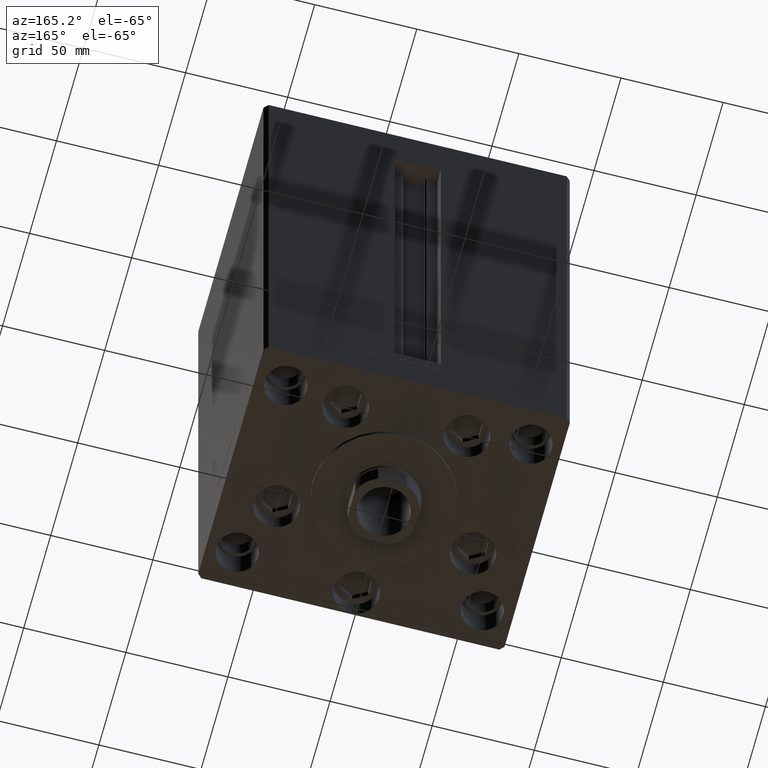
[diagram: clean part render]
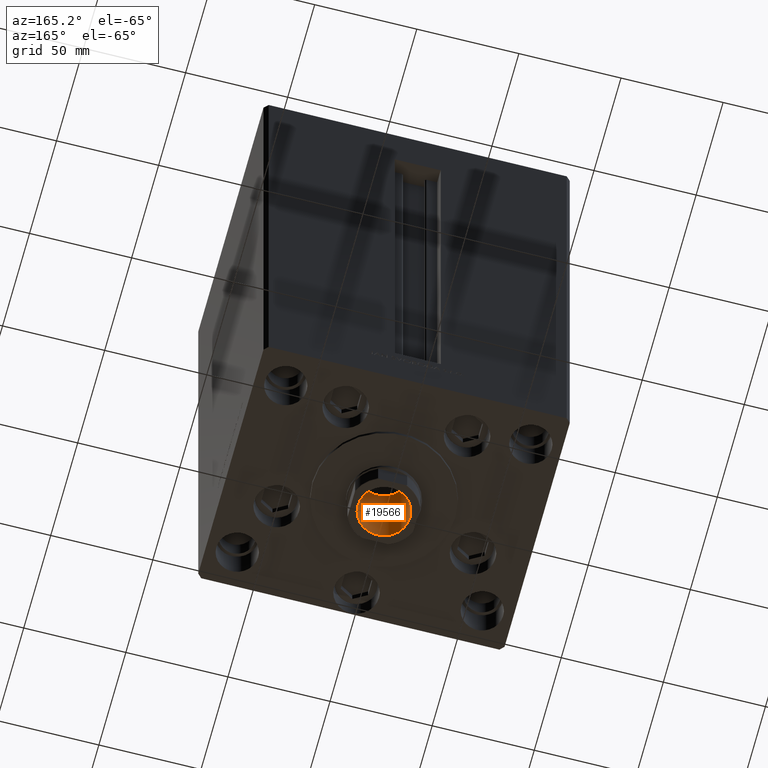
[diagram: same view with one face highlighted and labeled with its STEP entity id]
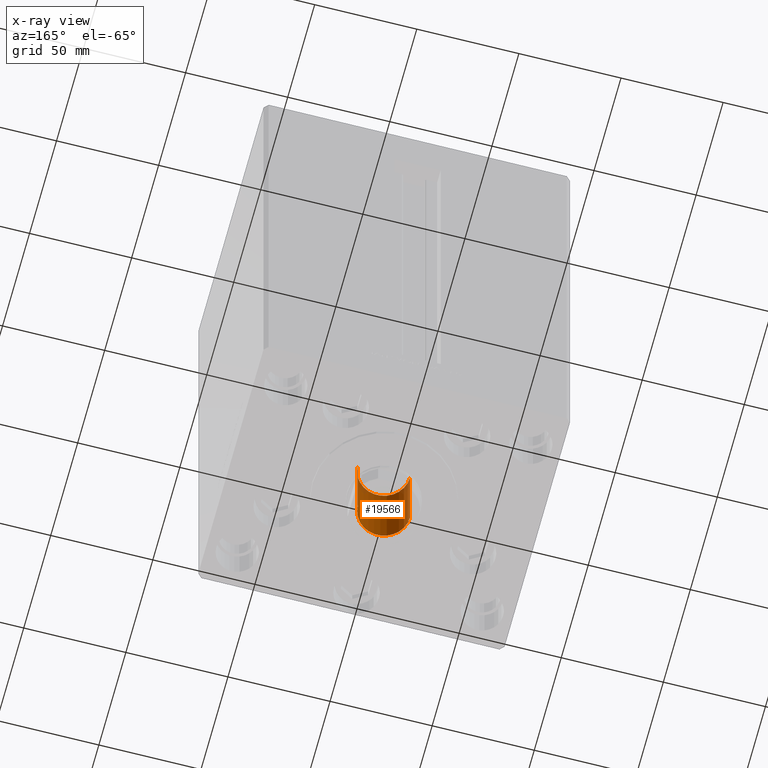
[diagram: x-ray of the same camera — body ghosted, the highlighted face saturated]
A machine part, auxiliary view. The second image highlights one B-rep face of the part: STEP entity #19566.
The next image is the same camera in x-ray: the body ghosted, the highlighted face saturated — about 5% of this face is hidden behind the body in this view.
In plain terms, the highlighted cylindrical surface (edge-blend (fillet) strip) has radius 12.75 mm, axis along (0, 0, -1).
Its self-contained STEP definition (entity closure, byte-faithful):
#3574 = VERTEX_POINT ( 'NONE', #42655 ) ;
#4647 = VERTEX_POINT ( 'NONE', #27961 ) ;
#6316 = CARTESIAN_POINT ( 'NONE',  ( -12.74999999999999467, 1.561424668912874519E-15, 252.1999999999999886 ) ) ;
#6577 = FACE_OUTER_BOUND ( 'NONE', #22371, .T. ) ;
#10393 = DIRECTION ( 'NONE',  ( 1.000000000000000000, 0.000000000000000000, 0.000000000000000000 ) ) ;
#11283 = EDGE_CURVE ( 'NONE', #3574, #46189, #15410, .T. ) ;
#14111 = DIRECTION ( 'NONE',  ( 0.000000000000000000, 0.000000000000000000, 1.000000000000000000 ) ) ;
#14749 = DIRECTION ( 'NONE',  ( 1.000000000000000000, 0.000000000000000000, 0.000000000000000000 ) ) ;
#15410 = LINE ( 'NONE', #37459, #48717 ) ;
#16922 = AXIS2_PLACEMENT_3D ( 'NONE', #40759, #33827, #14749 ) ;
#19022 = EDGE_CURVE ( 'NONE', #4647, #3574, #38225, .T. ) ;
#19548 = ORIENTED_EDGE ( 'NONE', *, *, #11283, .F. ) ;
#19566 = ADVANCED_FACE ( 'NONE', ( #6577 ), #44459, .F. ) ;
#20167 = CIRCLE ( 'NONE', #36679, 12.74999999999999467 ) ;
#22371 = EDGE_LOOP ( 'NONE', ( #48116, #35012, #31257, #19548 ) ) ;
#22380 = AXIS2_PLACEMENT_3D ( 'NONE', #29498, #33944, #48523 ) ;
#22597 = VECTOR ( 'NONE', #26942, 1000.000000000000000 ) ;
#22724 = CARTESIAN_POINT ( 'NONE',  ( -12.74999999999999467, 1.561424668912874519E-15, 252.5000000000000000 ) ) ;
#23179 = EDGE_CURVE ( 'NONE', #42890, #46189, #20167, .T. ) ;
#26243 = CARTESIAN_POINT ( 'NONE',  ( 0.000000000000000000, 0.000000000000000000, 252.1999999999999886 ) ) ;
#26942 = DIRECTION ( 'NONE',  ( -0.000000000000000000, -0.000000000000000000, 1.000000000000000000 ) ) ;
#27496 = CARTESIAN_POINT ( 'NONE',  ( 12.74999999999999467, 0.000000000000000000, 252.1999999999999886 ) ) ;
#27961 = CARTESIAN_POINT ( 'NONE',  ( -12.74999999999999112, 1.561424668912874125E-15, 207.5000000000000284 ) ) ;
#28258 = EDGE_CURVE ( 'NONE', #4647, #42890, #34368, .T. ) ;
#29498 = CARTESIAN_POINT ( 'NONE',  ( 0.000000000000000000, 0.000000000000000000, 207.5000000000000284 ) ) ;
#31257 = ORIENTED_EDGE ( 'NONE', *, *, #23179, .T. ) ;
#33827 = DIRECTION ( 'NONE',  ( -0.000000000000000000, -0.000000000000000000, 1.000000000000000000 ) ) ;
#33944 = DIRECTION ( 'NONE',  ( -0.000000000000000000, -0.000000000000000000, 1.000000000000000000 ) ) ;
#34368 = LINE ( 'NONE', #22724, #22597 ) ;
#35012 = ORIENTED_EDGE ( 'NONE', *, *, #28258, .T. ) ;
#36679 = AXIS2_PLACEMENT_3D ( 'NONE', #26243, #14111, #10393 ) ;
#37459 = CARTESIAN_POINT ( 'NONE',  ( 12.74999999999999467, 0.000000000000000000, 252.5000000000000000 ) ) ;
#38225 = CIRCLE ( 'NONE', #22380, 12.74999999999999112 ) ;
#40759 = CARTESIAN_POINT ( 'NONE',  ( 0.000000000000000000, 0.000000000000000000, 252.5000000000000000 ) ) ;
#42144 = DIRECTION ( 'NONE',  ( -0.000000000000000000, -0.000000000000000000, 1.000000000000000000 ) ) ;
#42655 = CARTESIAN_POINT ( 'NONE',  ( 12.74999999999999112, 0.000000000000000000, 207.5000000000000284 ) ) ;
#42890 = VERTEX_POINT ( 'NONE', #6316 ) ;
#44459 = CYLINDRICAL_SURFACE ( 'NONE', #16922, 12.74999999999999467 ) ;
#46189 = VERTEX_POINT ( 'NONE', #27496 ) ;
#48116 = ORIENTED_EDGE ( 'NONE', *, *, #19022, .F. ) ;
#48523 = DIRECTION ( 'NONE',  ( 1.000000000000000000, 0.000000000000000000, 0.000000000000000000 ) ) ;
#48717 = VECTOR ( 'NONE', #42144, 1000.000000000000000 ) ;